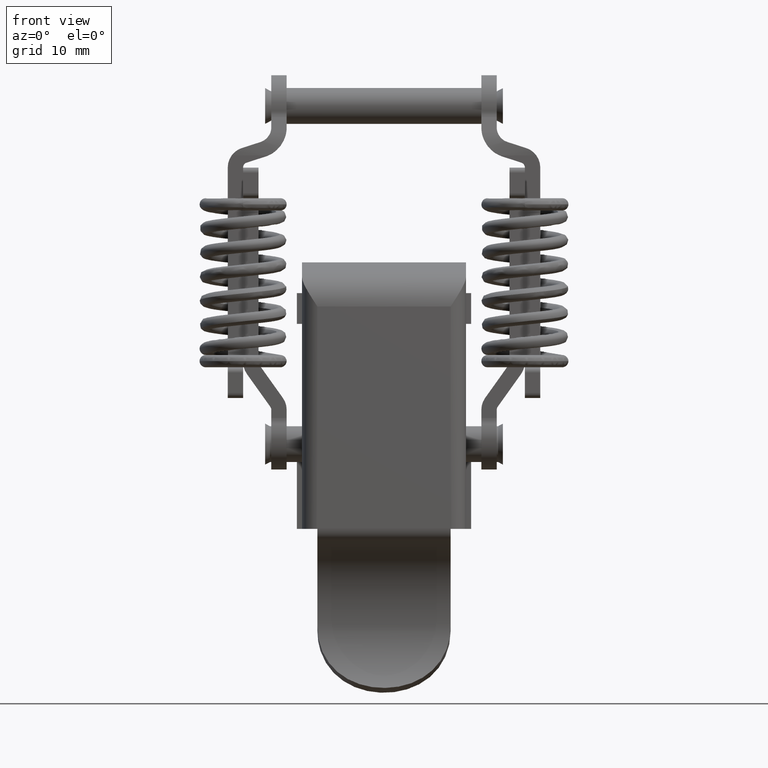
[diagram: clean part render]
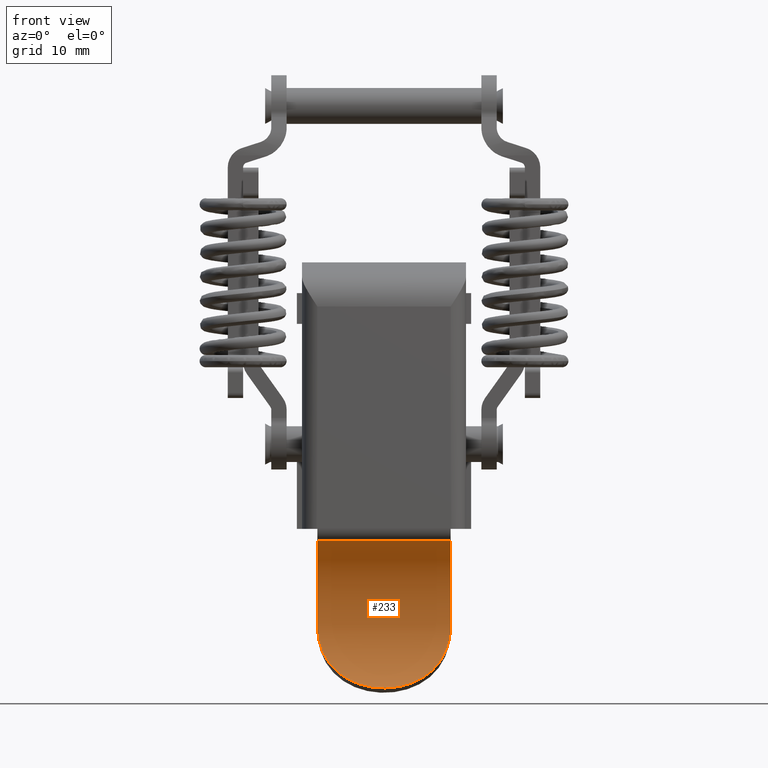
[diagram: same view with one face highlighted and labeled with its STEP entity id]
A machine part, front view. The second image highlights one B-rep face of the part: STEP entity #233.
In plain terms, the highlighted cylindrical surface (partial cylindrical patch) has radius 9.6106 mm, axis along (-1, 0, 0).
Its self-contained STEP definition (entity closure, byte-faithful):
#233=ADVANCED_FACE('',(#465),#464,.F.);
#464=CYLINDRICAL_SURFACE('',#2698,9.61062537653E+00);
#465=FACE_OUTER_BOUND('',#2699,.T.);
#2695=CARTESIAN_POINT('',(-7.80000000000E+00,-4.84349923548E+00,-9.02359038467E+00));
#2696=DIRECTION('',(-1.00000000000E+00,4.21079037893E-17,1.95469549939E-18));
#2697=DIRECTION('',(-2.56458710797E-17,-6.44543324460E-01,7.64567788292E-01));
#2698=AXIS2_PLACEMENT_3D('',#2695,#2696,#2697);
#2699=EDGE_LOOP('',(#6202,#6203,#6204,#6205));
#6202=ORIENTED_EDGE('',*,*,#7390,.F.);
#6203=ORIENTED_EDGE('',*,*,#7391,.T.);
#6204=ORIENTED_EDGE('',*,*,#7392,.T.);
#6205=ORIENTED_EDGE('',*,*,#7393,.T.);
#7390=EDGE_CURVE('',#8008,#8009,#8010,.T.);
#7391=EDGE_CURVE('',#8008,#8016,#8017,.T.);
#7392=EDGE_CURVE('',#8016,#8023,#8024,.T.);
#7393=EDGE_CURVE('',#8023,#8009,#8030,.T.);
#8008=VERTEX_POINT('',#11989);
#8009=VERTEX_POINT('',#11990);
#8010=CIRCLE('',#11994,9.61062537653E+00);
#8016=VERTEX_POINT('',#11995);
#8017=LINE('',#11996,#11997);
#8023=VERTEX_POINT('',#11999);
#8024=CIRCLE('',#12003,9.61062537653E+00);
#8030=(BOUNDED_CURVE() B_SPLINE_CURVE(3,(#12004,#12005,#12006,#12007,#12008,#12009,#12010,#12011,#12012,#12013,#12014,#12015,#12016,#12017,#12018,#12019,#12020,#12021,#12022,#12023,#12024,#12025,#12026,#12027,#12028,#12029,#12030,#12031,#12032,#12033,#12034,#12035,#12036,#12037,#12038,#12039,#12040,#12041),.UNSPECIFIED.,.F.,.F.) B_SPLINE_CURVE_WITH_KNOTS((4,2,2,2,2,2,2,2,2,2,2,2,2,2,2,2,2,2,4),(7.04648007013E-18,1.28168760541E-03,2.56337521082E-03,3.84506281623E-03,5.12675042164E-03,6.40843802705E-03,7.69012563246E-03,8.97181323787E-03,9.61265704057E-03,1.02535008433E-02,1.15351884487E-02,1.28168760541E-02,1.40985636595E-02,1.53802512649E-02,1.60210950676E-02,1.66619388703E-02,1.79436264757E-02,1.92253140811E-02,2.05070016865E-02),.UNSPECIFIED.) CURVE() GEOMETRIC_REPRESENTATION_ITEM() RATIONAL_B_SPLINE_CURVE((1.00000000000E+00,1.00000000000E+00,1.00000000000E+00,1.00000000000E+00,1.00000000000E+00,1.00000000000E+00,1.00000000000E+00,1.00000000000E+00,1.00000000000E+00,1.00000000000E+00,1.00000000000E+00,1.00000000000E+00,1.00000000000E+00,1.00000000000E+00,1.00000000000E+00,1.00000000000E+00,1.00000000000E+00,1.00000000000E+00,1.00000000000E+00,1.00000000000E+00,1.00000000000E+00,1.00000000000E+00,1.00000000000E+00,1.00000000000E+00,1.00000000000E+00,1.00000000000E+00,1.00000000000E+00,1.00000000000E+00,1.00000000000E+00,1.00000000000E+00,1.00000000000E+00,1.00000000000E+00,1.00000000000E+00,1.00000000000E+00,1.00000000000E+00,1.00000000000E+00,1.00000000000E+00,1.00000000000E+00)) REPRESENTATION_ITEM('') );
#11989=CARTESIAN_POINT('',(6.50000000000E+00,6.43590164302E-01,-1.13334513837E+00));
#11990=CARTESIAN_POINT('',(6.50000000000E+00,4.75432044701E+00,-9.51955154290E+00));
#11991=CARTESIAN_POINT('',(6.50000000000E+00,-4.84349923548E+00,-9.02359038467E+00));
#11992=DIRECTION('',(-1.00000000000E+00,-1.95188714152E-17,1.35739497436E-17));
#11993=DIRECTION('',(1.07852076886E-32,-5.70939890466E-01,-8.20991864439E-01));
#11994=AXIS2_PLACEMENT_3D('',#11991,#11992,#11993);
#11995=CARTESIAN_POINT('',(-6.50000000000E+00,6.43590164302E-01,-1.13334513837E+00));
#11996=CARTESIAN_POINT('',(6.50000000000E+00,6.43590164302E-01,-1.13334513837E+00));
#11997=VECTOR('',#11998,1.30000000000E+01);
#11998=DIRECTION('',(-1.00000000000E+00,0.00000000000E+00,0.00000000000E+00));
#11999=CARTESIAN_POINT('',(-6.50000000000E+00,4.75432044701E+00,-9.51955154290E+00));
#12000=CARTESIAN_POINT('',(-6.50000000000E+00,-4.84349923548E+00,-9.02359038467E+00));
#12001=DIRECTION('',(-1.00000000000E+00,-1.95188714152E-17,1.35739497436E-17));
#12002=DIRECTION('',(1.07852076886E-32,-5.70939890466E-01,-8.20991864439E-01));
#12003=AXIS2_PLACEMENT_3D('',#12000,#12001,#12002);
#12004=CARTESIAN_POINT('',(-6.50000000000E+00,4.75432044701E+00,-9.51955154290E+00));
#12005=CARTESIAN_POINT('',(-6.50000000000E+00,4.73194952568E+00,-9.95247268100E+00));
#12006=CARTESIAN_POINT('',(-6.45998446018E+00,4.68085567725E+00,-1.03753847969E+01));
#12007=CARTESIAN_POINT('',(-6.29643516141E+00,4.52653059381E+00,-1.12014851560E+01));
#12008=CARTESIAN_POINT('',(-6.17061940639E+00,4.42171106601E+00,-1.16074682121E+01));
#12009=CARTESIAN_POINT('',(-5.84369766461E+00,4.17807127226E+00,-1.23600274262E+01));
#12010=CARTESIAN_POINT('',(-5.64112819530E+00,4.03788671877E+00,-1.27133871591E+01));
#12011=CARTESIAN_POINT('',(-5.16253130508E+00,3.73708615704E+00,-1.33672260769E+01));
#12012=CARTESIAN_POINT('',(-4.89249808520E+00,3.58016397870E+00,-1.36604155854E+01));
#12013=CARTESIAN_POINT('',(-4.29230844012E+00,3.26726519514E+00,-1.41882539980E+01));
#12014=CARTESIAN_POINT('',(-3.96017093734E+00,3.11076042796E+00,-1.44230388512E+01));
#12015=CARTESIAN_POINT('',(-3.25916598677E+00,2.82495765008E+00,-1.48217848907E+01));
#12016=CARTESIAN_POINT('',(-2.88759704041E+00,2.69398080637E+00,-1.49886059462E+01));
#12017=CARTESIAN_POINT('',(-2.09831690394E+00,2.47082008426E+00,-1.52602360311E+01));
#12018=CARTESIAN_POINT('',(-1.69006808847E+00,2.38175477883E+00,-1.53614182866E+01));
#12019=CARTESIAN_POINT('',(-1.06571458377E+00,2.29101412641E+00,-1.54629147830E+01));
#12020=CARTESIAN_POINT('',(-8.55126197694E-01,2.26778131350E+00,-1.54884451412E+01));
#12021=CARTESIAN_POINT('',(-4.28800424360E-01,2.23649505616E+00,-1.55226933151E+01));
#12022=CARTESIAN_POINT('',(-2.11618133206E-01,2.22848090527E+00,-1.55313716530E+01));
#12023=CARTESIAN_POINT('',(4.34736705084E-01,2.22876434936E+00,-1.55310636265E+01));
#12024=CARTESIAN_POINT('',(8.59241303356E-01,2.26082590285E+00,-1.54966931825E+01));
#12025=CARTESIAN_POINT('',(1.69605248257E+00,2.38280652613E+00,-1.53602299153E+01));
#12026=CARTESIAN_POINT('',(2.11041019418E+00,2.47387352928E+00,-1.52566262647E+01));
#12027=CARTESIAN_POINT('',(2.89240156774E+00,2.69571303397E+00,-1.49863882864E+01));
#12028=CARTESIAN_POINT('',(3.26469147047E+00,2.82684608470E+00,-1.48194347446E+01));
#12029=CARTESIAN_POINT('',(3.97315655344E+00,3.11642869448E+00,-1.44148385263E+01));
#12030=CARTESIAN_POINT('',(4.29882216854E+00,3.27048907058E+00,-1.41831197335E+01));
#12031=CARTESIAN_POINT('',(4.74640035997E+00,3.50408645197E+00,-1.37885972703E+01));
#12032=CARTESIAN_POINT('',(4.88875919456E+00,3.58241400207E+00,-1.36491804149E+01));
#12033=CARTESIAN_POINT('',(5.15954725818E+00,3.73826956826E+00,-1.33531794199E+01));
#12034=CARTESIAN_POINT('',(5.28829918077E+00,3.81604273731E+00,-1.31959342788E+01));
#12035=CARTESIAN_POINT('',(5.64411811604E+00,4.03995007445E+00,-1.27082139709E+01));
#12036=CARTESIAN_POINT('',(5.84430783980E+00,4.17850872023E+00,-1.23588020998E+01));
#12037=CARTESIAN_POINT('',(6.17078940012E+00,4.42185508355E+00,-1.16068971958E+01));
#12038=CARTESIAN_POINT('',(6.29673630262E+00,4.52680180353E+00,-1.12001766406E+01));
#12039=CARTESIAN_POINT('',(6.45991804380E+00,4.68080597245E+00,-1.03755073929E+01));
#12040=CARTESIAN_POINT('',(6.50000000000E+00,4.73193160428E+00,-9.95281949519E+00));
#12041=CARTESIAN_POINT('',(6.50000000000E+00,4.75432044701E+00,-9.51955154290E+00));